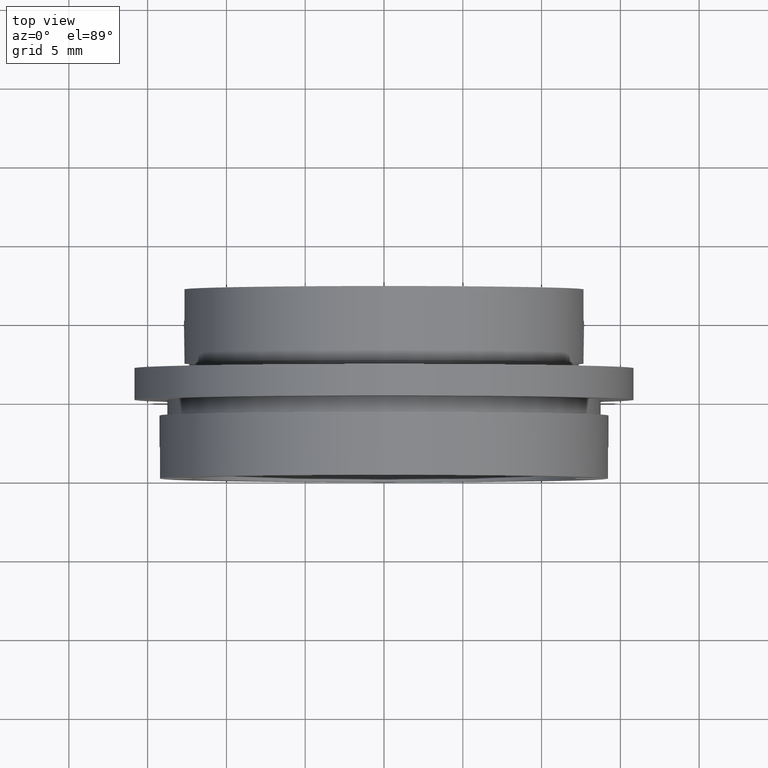
[diagram: clean part render]
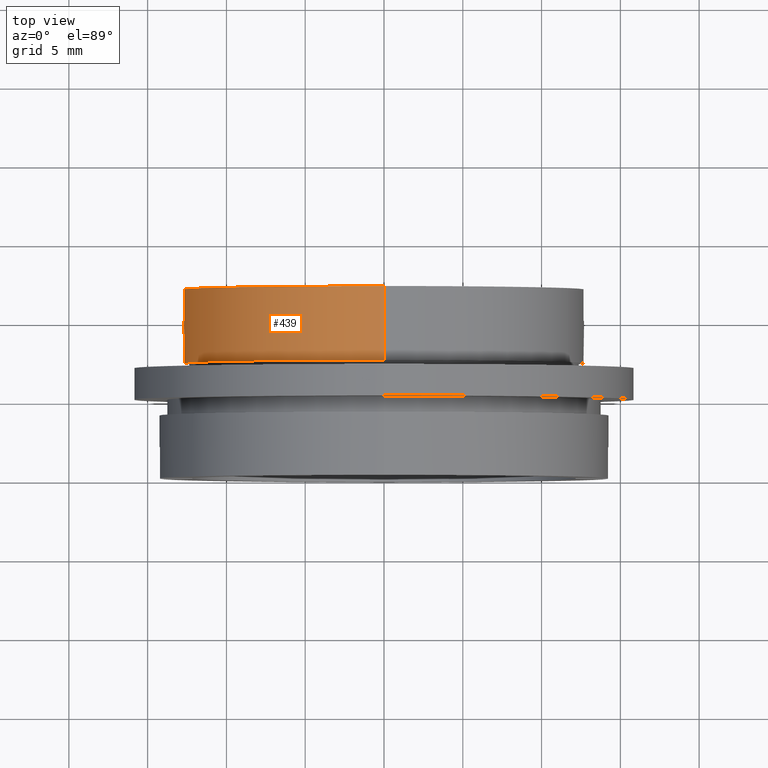
[diagram: same view with one face highlighted and labeled with its STEP entity id]
A machine part, top view. The second image highlights one B-rep face of the part: STEP entity #439.
In plain terms, the highlighted cylindrical surface (partial cylindrical patch) has radius 12.7 mm, axis along (-0, 1, -0).
Its self-contained STEP definition (entity closure, byte-faithful):
#21 = CIRCLE ( 'NONE', #224, 12.69999999999999800 ) ;
#23 = VERTEX_POINT ( 'NONE', #1336 ) ;
#62 = VECTOR ( 'NONE', #215, 1000.000000000000000 ) ;
#71 = CARTESIAN_POINT ( 'NONE',  ( 0.0000000000000000000, 12.00000000000000000, 12.69999999999999800 ) ) ;
#83 = EDGE_CURVE ( 'NONE', #290, #462, #419, .T. ) ;
#95 = VERTEX_POINT ( 'NONE', #101 ) ;
#101 = CARTESIAN_POINT ( 'NONE',  ( -12.66056870760551300, 12.00000000000000000, 1.000000000000001600 ) ) ;
#128 = ORIENTED_EDGE ( 'NONE', *, *, #1134, .F. ) ;
#145 = AXIS2_PLACEMENT_3D ( 'NONE', #211, #631, #986 ) ;
#147 = DIRECTION ( 'NONE',  ( 0.0000000000000000000, 0.0000000000000000000, 1.000000000000000000 ) ) ;
#154 = LINE ( 'NONE', #1148, #318 ) ;
#157 = AXIS2_PLACEMENT_3D ( 'NONE', #566, #563, #557 ) ;
#188 = CARTESIAN_POINT ( 'NONE',  ( 0.0000000000000000000, 12.00000000000000000, 0.0000000000000000000 ) ) ;
#211 = CARTESIAN_POINT ( 'NONE',  ( 0.0000000000000000000, 12.00000000000000000, 0.0000000000000000000 ) ) ;
#215 = DIRECTION ( 'NONE',  ( -0.0000000000000000000, 1.000000000000000000, -0.0000000000000000000 ) ) ;
#216 = DIRECTION ( 'NONE',  ( -0.0000000000000000000, 1.000000000000000000, -0.0000000000000000000 ) ) ;
#219 = VERTEX_POINT ( 'NONE', #418 ) ;
#224 = AXIS2_PLACEMENT_3D ( 'NONE', #988, #704, #900 ) ;
#241 = VECTOR ( 'NONE', #216, 1000.000000000000000 ) ;
#249 = LINE ( 'NONE', #864, #62 ) ;
#273 = CARTESIAN_POINT ( 'NONE',  ( -12.66056870760551300, 12.00000000000000000, -0.9999999999999978900 ) ) ;
#290 = VERTEX_POINT ( 'NONE', #293 ) ;
#293 = CARTESIAN_POINT ( 'NONE',  ( 0.0000000000000000000, 7.300000000000000700, 12.69999999999999800 ) ) ;
#316 = CYLINDRICAL_SURFACE ( 'NONE', #852, 12.69999999999999800 ) ;
#318 = VECTOR ( 'NONE', #736, 1000.000000000000000 ) ;
#324 = ORIENTED_EDGE ( 'NONE', *, *, #1161, .F. ) ;
#347 = LINE ( 'NONE', #475, #473 ) ;
#373 = VERTEX_POINT ( 'NONE', #1012 ) ;
#418 = CARTESIAN_POINT ( 'NONE',  ( -12.66056870760551300, 10.00000000000000000, 1.000000000000001300 ) ) ;
#419 = LINE ( 'NONE', #1295, #241 ) ;
#439 = ADVANCED_FACE ( 'NONE', ( #1322 ), #316, .T. ) ;
#462 = VERTEX_POINT ( 'NONE', #71 ) ;
#473 = VECTOR ( 'NONE', #810, 1000.000000000000000 ) ;
#475 = CARTESIAN_POINT ( 'NONE',  ( -12.66056870760551300, 22.67749945107591400, 1.000000000000002900 ) ) ;
#510 = CARTESIAN_POINT ( 'NONE',  ( 0.0000000000000000000, 22.67749945107591400, 0.0000000000000000000 ) ) ;
#545 = VERTEX_POINT ( 'NONE', #1178 ) ;
#557 = DIRECTION ( 'NONE',  ( 0.0000000000000000000, 0.0000000000000000000, -1.000000000000000000 ) ) ;
#563 = DIRECTION ( 'NONE',  ( 0.0000000000000000000, 1.000000000000000000, 0.0000000000000000000 ) ) ;
#566 = CARTESIAN_POINT ( 'NONE',  ( 0.0000000000000000000, 10.00000000000000000, 0.0000000000000000000 ) ) ;
#631 = DIRECTION ( 'NONE',  ( -0.0000000000000000000, 1.000000000000000000, -0.0000000000000000000 ) ) ;
#641 = ORIENTED_EDGE ( 'NONE', *, *, #1290, .F. ) ;
#670 = ORIENTED_EDGE ( 'NONE', *, *, #1040, .F. ) ;
#694 = ORIENTED_EDGE ( 'NONE', *, *, #1000, .F. ) ;
#704 = DIRECTION ( 'NONE',  ( -0.0000000000000000000, 1.000000000000000000, -0.0000000000000000000 ) ) ;
#717 = CIRCLE ( 'NONE', #145, 12.69999999999999800 ) ;
#736 = DIRECTION ( 'NONE',  ( 0.0000000000000000000, -1.000000000000000000, 0.0000000000000000000 ) ) ;
#800 = DIRECTION ( 'NONE',  ( -0.0000000000000000000, 1.000000000000000000, -0.0000000000000000000 ) ) ;
#810 = DIRECTION ( 'NONE',  ( -0.0000000000000000000, 1.000000000000000000, -0.0000000000000000000 ) ) ;
#837 = EDGE_CURVE ( 'NONE', #95, #462, #717, .T. ) ;
#843 = DIRECTION ( 'NONE',  ( 0.0000000000000000000, 0.0000000000000000000, 1.000000000000000000 ) ) ;
#852 = AXIS2_PLACEMENT_3D ( 'NONE', #510, #800, #147 ) ;
#864 = CARTESIAN_POINT ( 'NONE',  ( 1.555301434917138200E-015, 22.67749945107591400, -12.69999999999999800 ) ) ;
#868 = CIRCLE ( 'NONE', #157, 12.69999999999999800 ) ;
#900 = DIRECTION ( 'NONE',  ( 0.0000000000000000000, 0.0000000000000000000, 1.000000000000000000 ) ) ;
#986 = DIRECTION ( 'NONE',  ( 0.0000000000000000000, 0.0000000000000000000, 1.000000000000000000 ) ) ;
#988 = CARTESIAN_POINT ( 'NONE',  ( 0.0000000000000000000, 7.300000000000000700, 0.0000000000000000000 ) ) ;
#998 = CIRCLE ( 'NONE', #1288, 12.69999999999999800 ) ;
#1000 = EDGE_CURVE ( 'NONE', #373, #1001, #998, .T. ) ;
#1001 = VERTEX_POINT ( 'NONE', #273 ) ;
#1012 = CARTESIAN_POINT ( 'NONE',  ( 1.555301434917138200E-015, 12.00000000000000000, -12.69999999999999800 ) ) ;
#1040 = EDGE_CURVE ( 'NONE', #219, #95, #347, .T. ) ;
#1131 = EDGE_CURVE ( 'NONE', #23, #290, #21, .T. ) ;
#1134 = EDGE_CURVE ( 'NONE', #23, #373, #249, .T. ) ;
#1138 = ORIENTED_EDGE ( 'NONE', *, *, #837, .F. ) ;
#1148 = CARTESIAN_POINT ( 'NONE',  ( -12.66056870760551200, 22.67749945107591400, -1.000000000000000000 ) ) ;
#1161 = EDGE_CURVE ( 'NONE', #1001, #545, #154, .T. ) ;
#1178 = CARTESIAN_POINT ( 'NONE',  ( -12.66056870760551300, 10.00000000000000000, -0.9999999999999974500 ) ) ;
#1218 = ORIENTED_EDGE ( 'NONE', *, *, #83, .T. ) ;
#1229 = EDGE_LOOP ( 'NONE', ( #128, #1249, #1218, #1138, #670, #641, #324, #694 ) ) ;
#1249 = ORIENTED_EDGE ( 'NONE', *, *, #1131, .T. ) ;
#1288 = AXIS2_PLACEMENT_3D ( 'NONE', #188, #1304, #843 ) ;
#1290 = EDGE_CURVE ( 'NONE', #545, #219, #868, .T. ) ;
#1295 = CARTESIAN_POINT ( 'NONE',  ( 0.0000000000000000000, 22.67749945107591400, 12.69999999999999800 ) ) ;
#1304 = DIRECTION ( 'NONE',  ( -0.0000000000000000000, 1.000000000000000000, -0.0000000000000000000 ) ) ;
#1322 = FACE_OUTER_BOUND ( 'NONE', #1229, .T. ) ;
#1336 = CARTESIAN_POINT ( 'NONE',  ( 1.555301434917138200E-015, 7.300000000000000700, -12.69999999999999800 ) ) ;